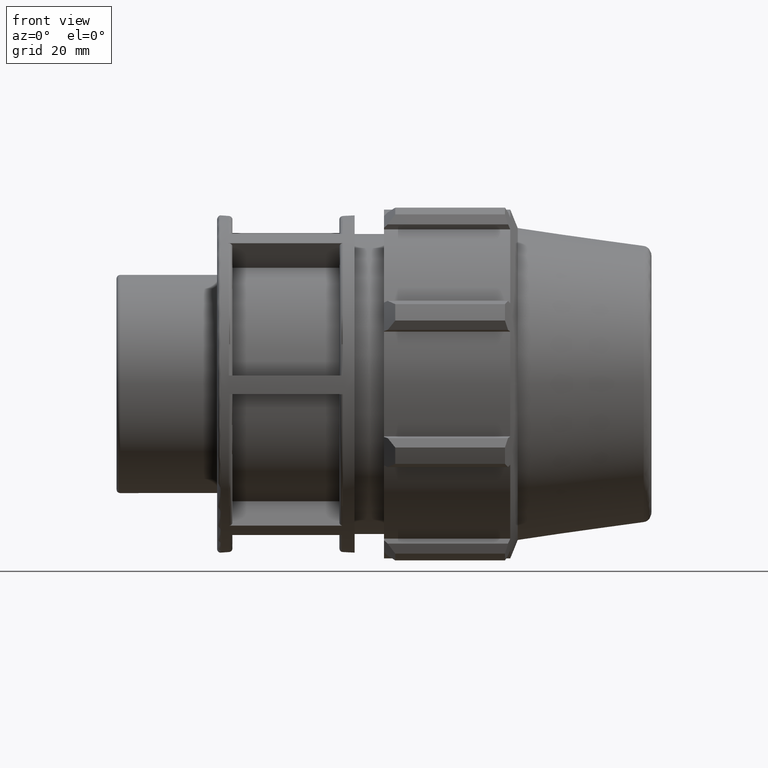
[diagram: clean part render]
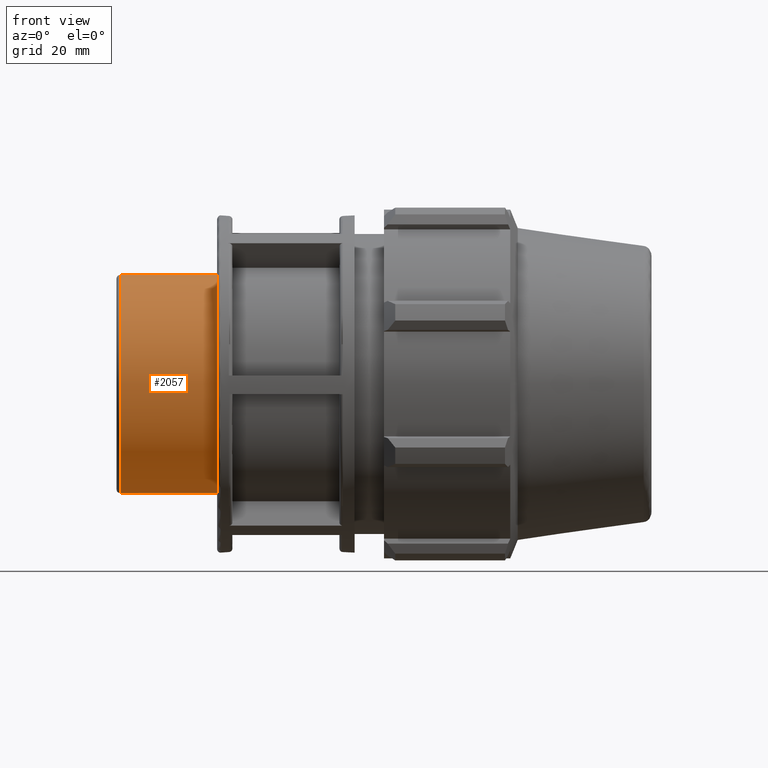
[diagram: same view with one face highlighted and labeled with its STEP entity id]
A machine part, front view. The second image highlights one B-rep face of the part: STEP entity #2057.
In plain terms, the highlighted cylindrical surface (bore or boss wall) has radius 23.9015 mm, axis along (1, 0, 0).
Its self-contained STEP definition (entity closure, byte-faithful):
#370=CYLINDRICAL_SURFACE('',#2179,23.9015);
#462=FACE_BOUND('',#607,.T.);
#487=FACE_OUTER_BOUND('',#606,.T.);
#606=EDGE_LOOP('',(#1338));
#607=EDGE_LOOP('',(#1339));
#745=CIRCLE('',#2176,23.9015);
#747=CIRCLE('',#2180,23.9015);
#839=VERTEX_POINT('',#2957);
#841=VERTEX_POINT('',#2963);
#1041=EDGE_CURVE('',#839,#839,#745,.T.);
#1043=EDGE_CURVE('',#841,#841,#747,.T.);
#1338=ORIENTED_EDGE('',*,*,#1043,.F.);
#1339=ORIENTED_EDGE('',*,*,#1041,.F.);
#2057=ADVANCED_FACE('',(#487,#462),#370,.T.);
#2176=AXIS2_PLACEMENT_3D('',#2958,#2391,#2392);
#2179=AXIS2_PLACEMENT_3D('',#2962,#2397,#2398);
#2180=AXIS2_PLACEMENT_3D('',#2964,#2399,#2400);
#2391=DIRECTION('center_axis',(-1.,0.,0.));
#2392=DIRECTION('ref_axis',(0.,-1.,1.83697019872103E-16));
#2397=DIRECTION('center_axis',(1.,0.,0.));
#2398=DIRECTION('ref_axis',(0.,1.,0.));
#2399=DIRECTION('center_axis',(1.,0.,0.));
#2400=DIRECTION('ref_axis',(0.,0.,-1.));
#2957=CARTESIAN_POINT('',(0.800000000000001,23.9015,-7.31772386745511E-15));
#2958=CARTESIAN_POINT('Origin',(0.800000000000001,0.,0.));
#2962=CARTESIAN_POINT('Origin',(11.,0.,0.));
#2963=CARTESIAN_POINT('',(22.,13.84057037361,-19.4864135741585));
#2964=CARTESIAN_POINT('Origin',(22.,0.,0.));